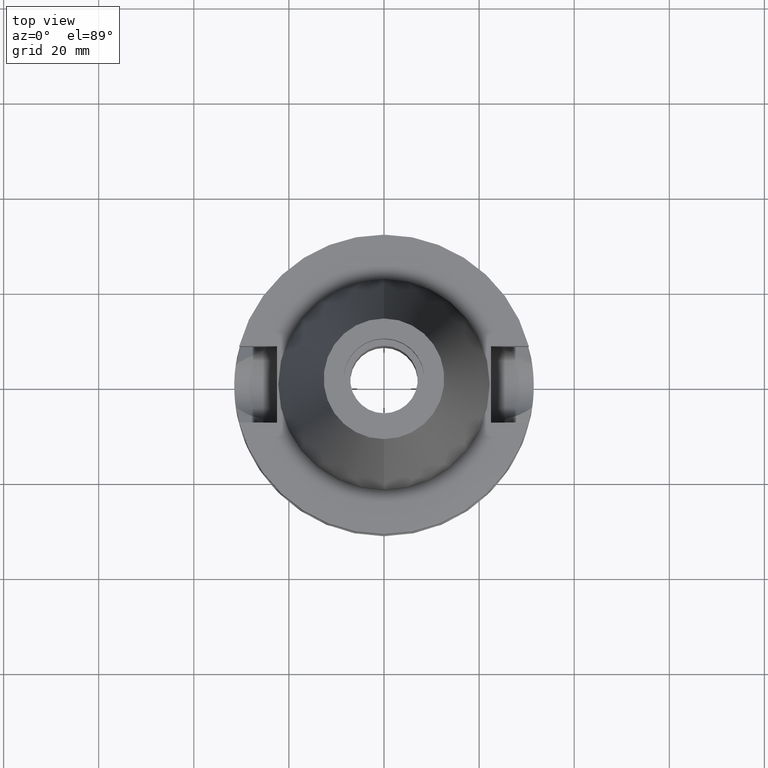
[diagram: clean part render]
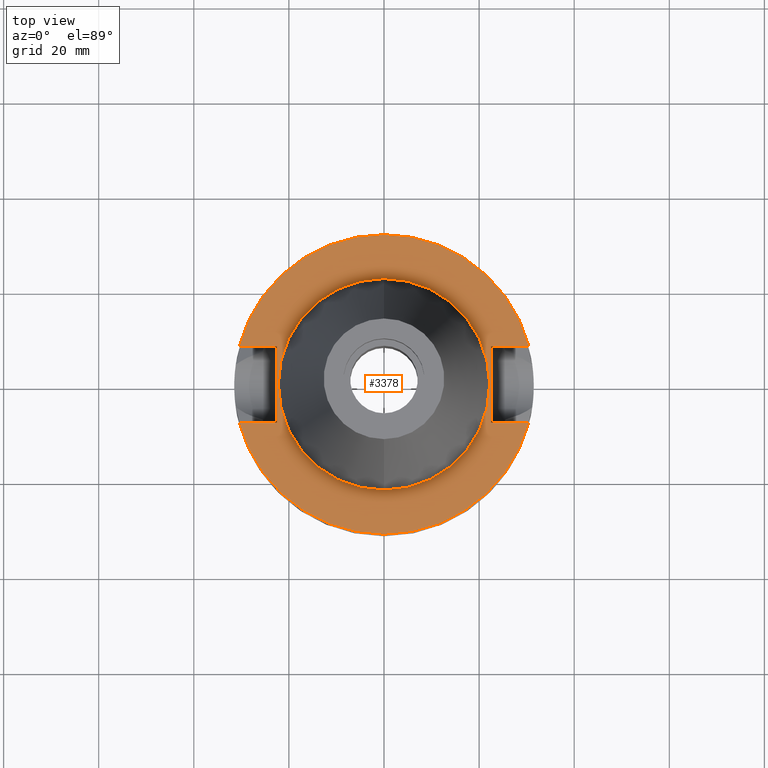
[diagram: same view with one face highlighted and labeled with its STEP entity id]
A machine part, top view. The second image highlights one B-rep face of the part: STEP entity #3378.
In plain terms, the highlighted planar face has unit normal (0, 0, -1).
Its self-contained STEP definition (entity closure, byte-faithful):
#33 = CARTESIAN_POINT ( 'NONE',  ( 0.0000000000000000000, 2.097452572899999775E-14, -2.000000000000000000 ) ) ;
#42 = CIRCLE ( 'NONE', #3309, 22.22500000000000142 ) ;
#54 = CARTESIAN_POINT ( 'NONE',  ( 22.50000000000000000, 8.050000000000000711, -2.000000000000000000 ) ) ;
#77 = VERTEX_POINT ( 'NONE', #1718 ) ;
#158 = CIRCLE ( 'NONE', #280, 31.50000000000000000 ) ;
#231 = DIRECTION ( 'NONE',  ( 0.0000000000000000000, 0.0000000000000000000, -1.000000000000000000 ) ) ;
#238 = CARTESIAN_POINT ( 'NONE',  ( -22.50000000000000000, 8.050000000000000711, -2.000000000000000000 ) ) ;
#266 = CARTESIAN_POINT ( 'NONE',  ( 0.0000000000000000000, 2.097452572899999775E-14, -2.000000000000000000 ) ) ;
#280 = AXIS2_PLACEMENT_3D ( 'NONE', #266, #3211, #3504 ) ;
#293 = DIRECTION ( 'NONE',  ( 0.0000000000000000000, 0.0000000000000000000, 1.000000000000000000 ) ) ;
#343 = ORIENTED_EDGE ( 'NONE', *, *, #1828, .T. ) ;
#435 = ORIENTED_EDGE ( 'NONE', *, *, #793, .F. ) ;
#440 = VECTOR ( 'NONE', #1331, 1000.000000000000000 ) ;
#463 = CARTESIAN_POINT ( 'NONE',  ( 0.0000000000000000000, -22.22500000000000142, -2.000000000000000000 ) ) ;
#513 = CIRCLE ( 'NONE', #1597, 31.50000000000000000 ) ;
#571 = CARTESIAN_POINT ( 'NONE',  ( 0.0000000000000000000, 22.22500000000000142, -2.000000000000000000 ) ) ;
#589 = CARTESIAN_POINT ( 'NONE',  ( -22.50000000000000000, -8.050000000000000711, -2.000000000000000000 ) ) ;
#753 = DIRECTION ( 'NONE',  ( 0.0000000000000000000, -1.000000000000000000, 0.0000000000000000000 ) ) ;
#760 = PLANE ( 'NONE',  #1106 ) ;
#793 = EDGE_CURVE ( 'NONE', #1100, #3347, #158, .T. ) ;
#858 = VECTOR ( 'NONE', #753, 1000.000000000000000 ) ;
#881 = DIRECTION ( 'NONE',  ( -1.000000000000000000, 3.550916904668000126E-14, 0.0000000000000000000 ) ) ;
#890 = DIRECTION ( 'NONE',  ( 0.0000000000000000000, 1.000000000000000000, 0.0000000000000000000 ) ) ;
#894 = DIRECTION ( 'NONE',  ( 0.0000000000000000000, 0.0000000000000000000, -1.000000000000000000 ) ) ;
#972 = VERTEX_POINT ( 'NONE', #571 ) ;
#1010 = CARTESIAN_POINT ( 'NONE',  ( -30.45402272279000044, 8.050000000000000711, -2.000000000000000000 ) ) ;
#1029 = EDGE_LOOP ( 'NONE', ( #1562, #435, #1228, #2713, #343, #2629, #2093, #2959 ) ) ;
#1039 = LINE ( 'NONE', #2953, #1660 ) ;
#1059 = EDGE_CURVE ( 'NONE', #1384, #3347, #1990, .T. ) ;
#1065 = VERTEX_POINT ( 'NONE', #3104 ) ;
#1100 = VERTEX_POINT ( 'NONE', #2860 ) ;
#1106 = AXIS2_PLACEMENT_3D ( 'NONE', #2645, #231, #2974 ) ;
#1223 = DIRECTION ( 'NONE',  ( 0.0000000000000000000, -1.000000000000000000, 0.0000000000000000000 ) ) ;
#1228 = ORIENTED_EDGE ( 'NONE', *, *, #3381, .F. ) ;
#1331 = DIRECTION ( 'NONE',  ( -1.000000000000000000, -3.550916904668000126E-14, 0.0000000000000000000 ) ) ;
#1346 = CARTESIAN_POINT ( 'NONE',  ( 0.0000000000000000000, 2.097452572899999775E-14, -2.000000000000000000 ) ) ;
#1384 = VERTEX_POINT ( 'NONE', #3480 ) ;
#1388 = ORIENTED_EDGE ( 'NONE', *, *, #1464, .F. ) ;
#1405 = VERTEX_POINT ( 'NONE', #1010 ) ;
#1459 = EDGE_CURVE ( 'NONE', #1405, #2073, #513, .T. ) ;
#1464 = EDGE_CURVE ( 'NONE', #3409, #972, #2975, .T. ) ;
#1528 = VERTEX_POINT ( 'NONE', #54 ) ;
#1562 = ORIENTED_EDGE ( 'NONE', *, *, #1059, .T. ) ;
#1585 = LINE ( 'NONE', #2680, #1647 ) ;
#1597 = AXIS2_PLACEMENT_3D ( 'NONE', #3083, #894, #3281 ) ;
#1613 = ORIENTED_EDGE ( 'NONE', *, *, #2274, .F. ) ;
#1647 = VECTOR ( 'NONE', #3470, 1000.000000000000000 ) ;
#1660 = VECTOR ( 'NONE', #2149, 1000.000000000000000 ) ;
#1697 = VECTOR ( 'NONE', #890, 1000.000000000000000 ) ;
#1718 = CARTESIAN_POINT ( 'NONE',  ( 22.50000000000000000, -8.050000000000000711, -2.000000000000000000 ) ) ;
#1828 = EDGE_CURVE ( 'NONE', #1528, #2073, #1585, .T. ) ;
#1871 = FACE_BOUND ( 'NONE', #2609, .T. ) ;
#1890 = CARTESIAN_POINT ( 'NONE',  ( 30.45402272279000044, 8.050000000000000711, -2.000000000000000000 ) ) ;
#1990 = LINE ( 'NONE', #589, #3556 ) ;
#2073 = VERTEX_POINT ( 'NONE', #1890 ) ;
#2093 = ORIENTED_EDGE ( 'NONE', *, *, #2431, .F. ) ;
#2149 = DIRECTION ( 'NONE',  ( 1.000000000000000000, 3.573249715389999860E-14, 0.0000000000000000000 ) ) ;
#2232 = CARTESIAN_POINT ( 'NONE',  ( -22.50000000000000000, -8.050000000000000711, -2.000000000000000000 ) ) ;
#2243 = EDGE_CURVE ( 'NONE', #1528, #77, #2529, .T. ) ;
#2274 = EDGE_CURVE ( 'NONE', #972, #3409, #42, .T. ) ;
#2367 = CARTESIAN_POINT ( 'NONE',  ( -30.45402272279000044, -8.050000000000000711, -2.000000000000000000 ) ) ;
#2431 = EDGE_CURVE ( 'NONE', #1065, #1405, #2688, .T. ) ;
#2529 = LINE ( 'NONE', #3478, #858 ) ;
#2543 = EDGE_CURVE ( 'NONE', #1384, #1065, #2818, .T. ) ;
#2609 = EDGE_LOOP ( 'NONE', ( #1613, #1388 ) ) ;
#2629 = ORIENTED_EDGE ( 'NONE', *, *, #1459, .F. ) ;
#2645 = CARTESIAN_POINT ( 'NONE',  ( 0.0000000000000000000, 1.200153863163999924E-14, -2.000000000000000000 ) ) ;
#2680 = CARTESIAN_POINT ( 'NONE',  ( 22.50000000000000000, 8.050000000000000711, -2.000000000000000000 ) ) ;
#2688 = LINE ( 'NONE', #238, #440 ) ;
#2713 = ORIENTED_EDGE ( 'NONE', *, *, #2243, .F. ) ;
#2781 = DIRECTION ( 'NONE',  ( 0.0000000000000000000, 0.0000000000000000000, 1.000000000000000000 ) ) ;
#2818 = LINE ( 'NONE', #2232, #1697 ) ;
#2860 = CARTESIAN_POINT ( 'NONE',  ( 30.45402272279000044, -8.050000000000000711, -2.000000000000000000 ) ) ;
#2953 = CARTESIAN_POINT ( 'NONE',  ( 22.50000000000000000, -8.050000000000000711, -2.000000000000000000 ) ) ;
#2959 = ORIENTED_EDGE ( 'NONE', *, *, #2543, .F. ) ;
#2974 = DIRECTION ( 'NONE',  ( 0.0000000000000000000, -1.000000000000000000, 0.0000000000000000000 ) ) ;
#2975 = CIRCLE ( 'NONE', #3433, 22.22500000000000142 ) ;
#3083 = CARTESIAN_POINT ( 'NONE',  ( 0.0000000000000000000, 2.097452572899999775E-14, -2.000000000000000000 ) ) ;
#3104 = CARTESIAN_POINT ( 'NONE',  ( -22.50000000000000000, 8.050000000000000711, -2.000000000000000000 ) ) ;
#3211 = DIRECTION ( 'NONE',  ( 0.0000000000000000000, 0.0000000000000000000, -1.000000000000000000 ) ) ;
#3221 = DIRECTION ( 'NONE',  ( 0.0000000000000000000, 1.000000000000000000, 0.0000000000000000000 ) ) ;
#3235 = FACE_OUTER_BOUND ( 'NONE', #1029, .T. ) ;
#3281 = DIRECTION ( 'NONE',  ( 0.0000000000000000000, 1.000000000000000000, 0.0000000000000000000 ) ) ;
#3309 = AXIS2_PLACEMENT_3D ( 'NONE', #1346, #293, #3221 ) ;
#3347 = VERTEX_POINT ( 'NONE', #2367 ) ;
#3378 = ADVANCED_FACE ( 'NONE', ( #3235, #1871 ), #760, .F. ) ;
#3381 = EDGE_CURVE ( 'NONE', #77, #1100, #1039, .T. ) ;
#3409 = VERTEX_POINT ( 'NONE', #463 ) ;
#3433 = AXIS2_PLACEMENT_3D ( 'NONE', #33, #2781, #1223 ) ;
#3470 = DIRECTION ( 'NONE',  ( 1.000000000000000000, -3.506251283225999947E-14, 0.0000000000000000000 ) ) ;
#3478 = CARTESIAN_POINT ( 'NONE',  ( 22.50000000000000000, 8.050000000000000711, -2.000000000000000000 ) ) ;
#3480 = CARTESIAN_POINT ( 'NONE',  ( -22.50000000000000000, -8.050000000000000711, -2.000000000000000000 ) ) ;
#3504 = DIRECTION ( 'NONE',  ( 0.0000000000000000000, -1.000000000000000000, 0.0000000000000000000 ) ) ;
#3556 = VECTOR ( 'NONE', #881, 1000.000000000000000 ) ;